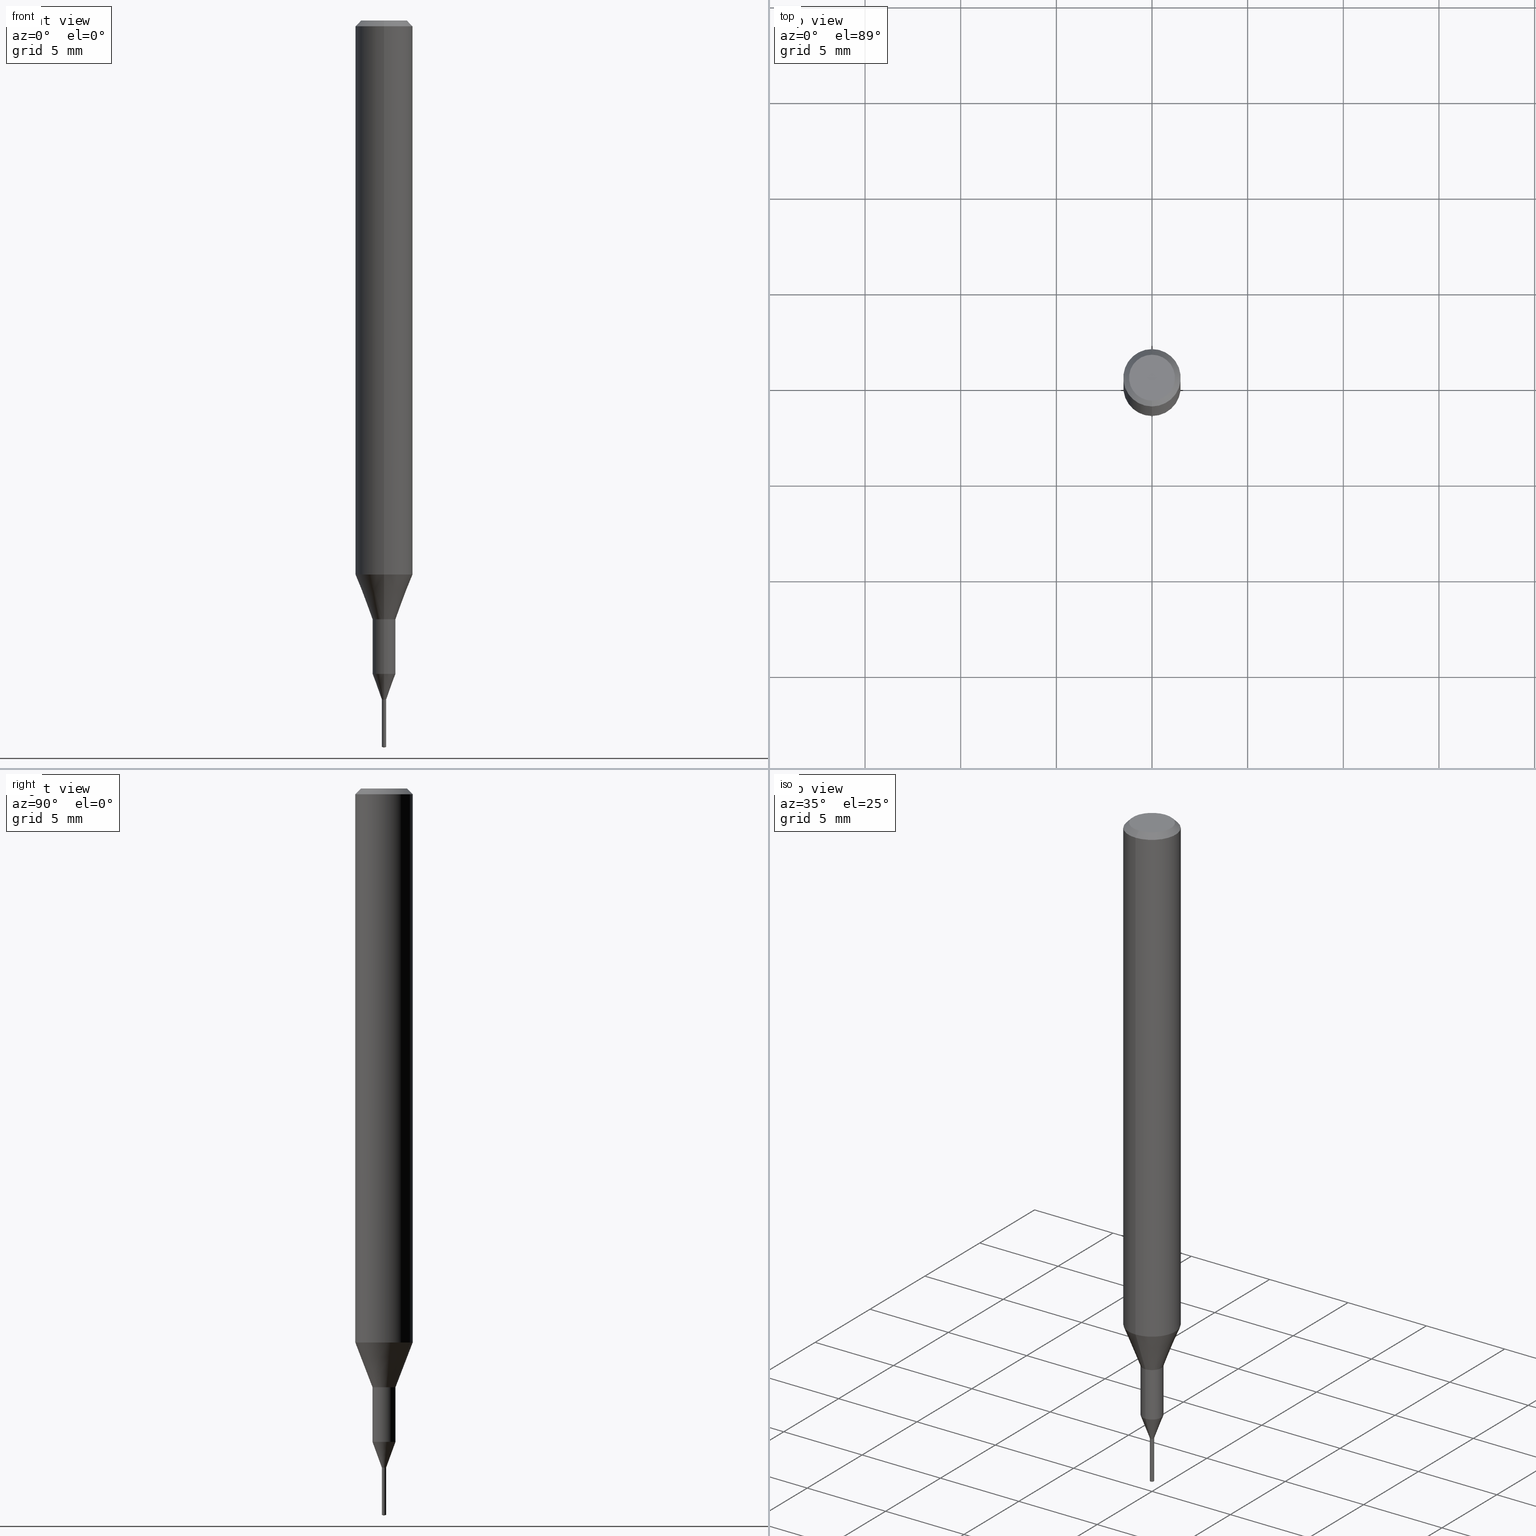
[diagram: canonical four-view strip — front | top / right | iso, engineering-drawing reading convention]
A machine part, canonical four-view strip (front | top / right | iso — engineering-drawing reading convention). The complete STEP part file that produces these views, byte-faithful:
ISO-10303-21;
HEADER;
FILE_DESCRIPTION(('no description'),'unknown implementation level');
FILE_NAME('C-UMD2022-025-Huellk.stp','  ',('CIMSOURCE GmbH'),('CADClick - KiM GmbH - www.kimweb.de'),'unknown preprocess','ACIS','unknown authorization');
FILE_SCHEMA(('automotive_design'));
ENDSEC;
DATA;
#1=MECHANICAL_DESIGN_GEOMETRIC_PRESENTATION_REPRESENTATION(' ',(#14,#15,#16,#17,#18,#19,#20,#21,#22,#23,#24,#25,#26,#27,#28,#29,#30,#31,#32,#33,#34,#35,#36,#37,#38,#39,#40,#41,#42,#43,#44,#45,#46,#47,#48,#49,#50,#51,#52,#53,#54,#55,#56,#57,#58,#59,#60,#61,#62,#63,#64,#65,#66,#67,#68,#69,#70,#71,#72,#73,#74,#75,#76,#77,#78,#79,#80,#81,#82,#83,#84,#85,#86,#87,#88,#89,#90,#91,#92),#10);
#2=PRODUCT_DEFINITION_CONTEXT('',#93,'design');
#3=APPLICATION_PROTOCOL_DEFINITION('INTERNATIONAL STANDARD','automotive_design',1994,#93);
#4=PRODUCT_CATEGORY_RELATIONSHIP('NONE','NONE',#94,#95);
#5=SHAPE_DEFINITION_REPRESENTATION(#96,#97);
#6=PRODUCT_DEFINITION_CONTEXT('',#98,'design');
#7=APPLICATION_PROTOCOL_DEFINITION('INTERNATIONAL STANDARD','automotive_design',1994,#98);
#8=PRODUCT_CATEGORY_RELATIONSHIP('NONE','NONE',#99,#100);
#9=SHAPE_DEFINITION_REPRESENTATION(#101,#102);
#10= (GEOMETRIC_REPRESENTATION_CONTEXT(3)GLOBAL_UNCERTAINTY_ASSIGNED_CONTEXT((#105))GLOBAL_UNIT_ASSIGNED_CONTEXT((#107,#108,#109))REPRESENTATION_CONTEXT('NONE','WORKSPACE'));
#14=STYLED_ITEM('',(#111),#112);
#15=STYLED_ITEM('',(#113),#114);
#16=STYLED_ITEM('',(#115),#116);
#17=STYLED_ITEM('',(#117),#118);
#18=STYLED_ITEM('',(#119),#120);
#19=STYLED_ITEM('',(#121),#122);
#20=STYLED_ITEM('',(#123),#124);
#21=STYLED_ITEM('',(#125),#126);
#22=STYLED_ITEM('',(#127),#128);
#23=STYLED_ITEM('',(#129),#130);
#24=STYLED_ITEM('',(#131),#132);
#25=STYLED_ITEM('',(#133),#134);
#26=STYLED_ITEM('',(#135),#136);
#27=STYLED_ITEM('',(#137),#138);
#28=STYLED_ITEM('',(#139),#140);
#29=STYLED_ITEM('',(#141),#142);
#30=STYLED_ITEM('',(#143),#144);
#31=STYLED_ITEM('',(#145),#146);
#32=STYLED_ITEM('',(#147),#148);
#33=STYLED_ITEM('',(#149),#150);
#34=STYLED_ITEM('',(#151),#152);
#35=STYLED_ITEM('',(#153),#154);
#36=STYLED_ITEM('',(#155),#156);
#37=STYLED_ITEM('',(#157),#158);
#38=STYLED_ITEM('',(#159),#160);
#39=STYLED_ITEM('',(#161),#162);
#40=STYLED_ITEM('',(#163),#164);
#41=STYLED_ITEM('',(#165),#166);
#42=STYLED_ITEM('',(#167),#168);
#43=STYLED_ITEM('',(#169),#170);
#44=STYLED_ITEM('',(#171),#172);
#45=STYLED_ITEM('',(#173),#174);
#46=STYLED_ITEM('',(#175),#176);
#47=STYLED_ITEM('',(#177),#178);
#48=STYLED_ITEM('',(#179),#180);
#49=STYLED_ITEM('',(#181),#182);
#50=STYLED_ITEM('',(#183),#184);
#51=STYLED_ITEM('',(#185),#186);
#52=STYLED_ITEM('',(#187),#188);
#53=STYLED_ITEM('',(#189),#190);
#54=STYLED_ITEM('',(#191),#192);
#55=STYLED_ITEM('',(#193),#194);
#56=STYLED_ITEM('',(#195),#196);
#57=STYLED_ITEM('',(#197),#198);
#58=STYLED_ITEM('',(#199),#200);
#59=STYLED_ITEM('',(#201),#202);
#60=STYLED_ITEM('',(#203),#204);
#61=STYLED_ITEM('',(#205),#206);
#62=STYLED_ITEM('',(#207),#208);
#63=STYLED_ITEM('',(#209),#210);
#64=STYLED_ITEM('',(#211),#212);
#65=STYLED_ITEM('',(#213),#214);
#66=STYLED_ITEM('',(#215),#216);
#67=STYLED_ITEM('',(#217),#218);
#68=STYLED_ITEM('',(#219),#220);
#69=STYLED_ITEM('',(#221),#222);
#70=STYLED_ITEM('',(#223),#224);
#71=STYLED_ITEM('',(#225),#226);
#72=STYLED_ITEM('',(#227),#228);
#73=STYLED_ITEM('',(#229),#230);
#74=STYLED_ITEM('',(#231),#232);
#75=STYLED_ITEM('',(#233),#234);
#76=STYLED_ITEM('',(#235),#236);
#77=STYLED_ITEM('',(#237),#238);
#78=STYLED_ITEM('',(#239),#240);
#79=STYLED_ITEM('',(#241),#242);
#80=STYLED_ITEM('',(#243),#244);
#81=STYLED_ITEM('',(#245),#246);
#82=STYLED_ITEM('',(#247),#248);
#83=STYLED_ITEM('',(#249),#250);
#84=STYLED_ITEM('',(#251),#252);
#85=STYLED_ITEM('',(#253),#254);
#86=STYLED_ITEM('',(#255),#256);
#87=STYLED_ITEM('',(#257),#258);
#88=STYLED_ITEM('',(#259),#260);
#89=STYLED_ITEM('',(#261),#262);
#90=STYLED_ITEM('',(#263),#264);
#91=STYLED_ITEM('',(#265),#266);
#92=STYLED_ITEM('',(#267),#268);
#93=APPLICATION_CONTEXT(' ');
#94=PRODUCT_CATEGORY('part','NONE');
#95=PRODUCT_RELATED_PRODUCT_CATEGORY('detail',' ',(#269));
#96=PRODUCT_DEFINITION_SHAPE('NONE','NONE',#270);
#97=ADVANCED_BREP_SHAPE_REPRESENTATION('1',(#136,#271),#10);
#98=APPLICATION_CONTEXT(' ');
#99=PRODUCT_CATEGORY('part','NONE');
#100=PRODUCT_RELATED_PRODUCT_CATEGORY('detail',' ',(#272));
#101=PRODUCT_DEFINITION_SHAPE('NONE','NONE',#273);
#102=ADVANCED_BREP_SHAPE_REPRESENTATION('2',(#148,#274),#10);
#105=UNCERTAINTY_MEASURE_WITH_UNIT(LENGTH_MEASURE(1.0E-006),#107,'','');
#107= (CONVERSION_BASED_UNIT('MILLIMETRE',#277)LENGTH_UNIT()NAMED_UNIT(#280));
#108= (NAMED_UNIT(#282)PLANE_ANGLE_UNIT()SI_UNIT($,.RADIAN.));
#109= (NAMED_UNIT(#282)SOLID_ANGLE_UNIT()SI_UNIT($,.STERADIAN.));
#111=PRESENTATION_STYLE_ASSIGNMENT((#288));
#112=ADVANCED_FACE('',(#289),#290,.T.);
#113=PRESENTATION_STYLE_ASSIGNMENT((#291));
#114=VERTEX_POINT('',#292);
#115=PRESENTATION_STYLE_ASSIGNMENT((#293));
#116=ADVANCED_FACE('',(#294),#295,.T.);
#117=PRESENTATION_STYLE_ASSIGNMENT((#296));
#118=EDGE_CURVE('',#244,#242,#297,.T.);
#119=PRESENTATION_STYLE_ASSIGNMENT((#298));
#120=EDGE_CURVE('',#164,#216,#299,.T.);
#121=PRESENTATION_STYLE_ASSIGNMENT((#300));
#122=EDGE_CURVE('',#200,#204,#301,.T.);
#123=PRESENTATION_STYLE_ASSIGNMENT((#302));
#124=EDGE_CURVE('',#202,#222,#303,.T.);
#125=PRESENTATION_STYLE_ASSIGNMENT((#304));
#126=EDGE_CURVE('',#236,#114,#305,.T.);
#127=PRESENTATION_STYLE_ASSIGNMENT((#306));
#128=ADVANCED_FACE('',(#307),#308,.T.);
#129=PRESENTATION_STYLE_ASSIGNMENT((#309));
#130=EDGE_CURVE('',#150,#234,#310,.T.);
#131=PRESENTATION_STYLE_ASSIGNMENT((#311));
#132=EDGE_CURVE('',#114,#200,#312,.T.);
#133=PRESENTATION_STYLE_ASSIGNMENT((#313));
#134=EDGE_CURVE('',#204,#236,#314,.T.);
#135=PRESENTATION_STYLE_ASSIGNMENT((#315));
#136=MANIFOLD_SOLID_BREP('1',#316);
#137=PRESENTATION_STYLE_ASSIGNMENT((#317));
#138=EDGE_CURVE('',#250,#204,#318,.T.);
#139=PRESENTATION_STYLE_ASSIGNMENT((#319));
#140=VERTEX_POINT('',#320);
#141=PRESENTATION_STYLE_ASSIGNMENT((#321));
#142=EDGE_CURVE('',#188,#232,#322,.T.);
#143=PRESENTATION_STYLE_ASSIGNMENT((#323));
#144=VERTEX_POINT('',#324);
#145=PRESENTATION_STYLE_ASSIGNMENT((#325));
#146=EDGE_CURVE('',#154,#192,#326,.T.);
#147=PRESENTATION_STYLE_ASSIGNMENT((#327));
#148=MANIFOLD_SOLID_BREP('2',#328);
#149=PRESENTATION_STYLE_ASSIGNMENT((#329));
#150=VERTEX_POINT('',#330);
#151=PRESENTATION_STYLE_ASSIGNMENT((#331));
#152=EDGE_CURVE('',#242,#244,#332,.T.);
#153=PRESENTATION_STYLE_ASSIGNMENT((#333));
#154=VERTEX_POINT('',#334);
#155=PRESENTATION_STYLE_ASSIGNMENT((#335));
#156=ADVANCED_FACE('',(#336),#337,.T.);
#157=PRESENTATION_STYLE_ASSIGNMENT((#338));
#158=ADVANCED_FACE('',(#339),#340,.T.);
#159=PRESENTATION_STYLE_ASSIGNMENT((#341));
#160=EDGE_CURVE('',#216,#164,#342,.T.);
#161=PRESENTATION_STYLE_ASSIGNMENT((#343));
#162=ADVANCED_FACE('',(#344),#345,.T.);
#163=PRESENTATION_STYLE_ASSIGNMENT((#346));
#164=VERTEX_POINT('',#347);
#165=PRESENTATION_STYLE_ASSIGNMENT((#348));
#166=ADVANCED_FACE('',(#349),#350,.T.);
#167=PRESENTATION_STYLE_ASSIGNMENT((#351));
#168=ADVANCED_FACE('',(#352),#353,.T.);
#169=PRESENTATION_STYLE_ASSIGNMENT((#354));
#170=VERTEX_POINT('',#355);
#171=PRESENTATION_STYLE_ASSIGNMENT((#356));
#172=ADVANCED_FACE('',(#357),#358,.T.);
#173=PRESENTATION_STYLE_ASSIGNMENT((#359));
#174=EDGE_CURVE('',#234,#150,#360,.T.);
#175=PRESENTATION_STYLE_ASSIGNMENT((#361));
#176=VERTEX_POINT('',#362);
#177=PRESENTATION_STYLE_ASSIGNMENT((#363));
#178=EDGE_CURVE('',#176,#150,#364,.T.);
#179=PRESENTATION_STYLE_ASSIGNMENT((#365));
#180=ADVANCED_FACE('',(#366),#367,.T.);
#181=PRESENTATION_STYLE_ASSIGNMENT((#368));
#182=EDGE_CURVE('',#200,#250,#369,.T.);
#183=PRESENTATION_STYLE_ASSIGNMENT((#370));
#184=EDGE_CURVE('',#234,#144,#371,.T.);
#185=PRESENTATION_STYLE_ASSIGNMENT((#372));
#186=EDGE_CURVE('',#188,#140,#373,.T.);
#187=PRESENTATION_STYLE_ASSIGNMENT((#374));
#188=VERTEX_POINT('',#375);
#189=PRESENTATION_STYLE_ASSIGNMENT((#376));
#190=EDGE_CURVE('',#176,#144,#377,.T.);
#191=PRESENTATION_STYLE_ASSIGNMENT((#378));
#192=VERTEX_POINT('',#379);
#193=PRESENTATION_STYLE_ASSIGNMENT((#380));
#194=EDGE_CURVE('',#236,#222,#381,.T.);
#195=PRESENTATION_STYLE_ASSIGNMENT((#382));
#196=ADVANCED_FACE('',(#383,#384),#385,.T.);
#197=PRESENTATION_STYLE_ASSIGNMENT((#386));
#198=EDGE_CURVE('',#154,#234,#387,.T.);
#199=PRESENTATION_STYLE_ASSIGNMENT((#388));
#200=VERTEX_POINT('',#389);
#201=PRESENTATION_STYLE_ASSIGNMENT((#390));
#202=VERTEX_POINT('',#391);
#203=PRESENTATION_STYLE_ASSIGNMENT((#392));
#204=VERTEX_POINT('',#393);
#205=PRESENTATION_STYLE_ASSIGNMENT((#394));
#206=ADVANCED_FACE('',(#395),#396,.T.);
#207=PRESENTATION_STYLE_ASSIGNMENT((#397));
#208=EDGE_CURVE('',#170,#140,#398,.T.);
#209=PRESENTATION_STYLE_ASSIGNMENT((#399));
#210=EDGE_CURVE('',#114,#236,#400,.T.);
#211=PRESENTATION_STYLE_ASSIGNMENT((#401));
#212=EDGE_CURVE('',#202,#114,#402,.T.);
#213=PRESENTATION_STYLE_ASSIGNMENT((#403));
#214=EDGE_CURVE('',#144,#176,#404,.T.);
#215=PRESENTATION_STYLE_ASSIGNMENT((#405));
#216=VERTEX_POINT('',#406);
#217=PRESENTATION_STYLE_ASSIGNMENT((#407));
#218=ADVANCED_FACE('',(#408),#409,.T.);
#219=PRESENTATION_STYLE_ASSIGNMENT((#410));
#220=ADVANCED_FACE('',(#411),#412,.T.);
#221=PRESENTATION_STYLE_ASSIGNMENT((#413));
#222=VERTEX_POINT('',#414);
#223=PRESENTATION_STYLE_ASSIGNMENT((#415));
#224=EDGE_CURVE('',#242,#170,#416,.T.);
#225=PRESENTATION_STYLE_ASSIGNMENT((#417));
#226=ADVANCED_FACE('',(#418),#419,.T.);
#227=PRESENTATION_STYLE_ASSIGNMENT((#420));
#228=EDGE_CURVE('',#192,#154,#421,.T.);
#229=PRESENTATION_STYLE_ASSIGNMENT((#422));
#230=EDGE_CURVE('',#222,#202,#423,.T.);
#231=PRESENTATION_STYLE_ASSIGNMENT((#424));
#232=VERTEX_POINT('',#425);
#233=PRESENTATION_STYLE_ASSIGNMENT((#426));
#234=VERTEX_POINT('',#427);
#235=PRESENTATION_STYLE_ASSIGNMENT((#428));
#236=VERTEX_POINT('',#429);
#237=PRESENTATION_STYLE_ASSIGNMENT((#430));
#238=EDGE_CURVE('',#204,#200,#431,.T.);
#239=PRESENTATION_STYLE_ASSIGNMENT((#432));
#240=EDGE_CURVE('',#140,#170,#433,.T.);
#241=PRESENTATION_STYLE_ASSIGNMENT((#434));
#242=VERTEX_POINT('',#435);
#243=PRESENTATION_STYLE_ASSIGNMENT((#436));
#244=VERTEX_POINT('',#437);
#245=PRESENTATION_STYLE_ASSIGNMENT((#438));
#246=EDGE_CURVE('',#164,#154,#439,.T.);
#247=PRESENTATION_STYLE_ASSIGNMENT((#440));
#248=ADVANCED_FACE('',(#441),#442,.T.);
#249=PRESENTATION_STYLE_ASSIGNMENT((#443));
#250=VERTEX_POINT('',#444);
#251=PRESENTATION_STYLE_ASSIGNMENT((#445));
#252=ADVANCED_FACE('',(#446),#447,.T.);
#253=PRESENTATION_STYLE_ASSIGNMENT((#448));
#254=ADVANCED_FACE('',(#449),#450,.T.);
#255=PRESENTATION_STYLE_ASSIGNMENT((#451));
#256=EDGE_CURVE('',#192,#216,#452,.T.);
#257=PRESENTATION_STYLE_ASSIGNMENT((#453));
#258=ADVANCED_FACE('',(#454),#455,.T.);
#259=PRESENTATION_STYLE_ASSIGNMENT((#456));
#260=EDGE_CURVE('',#170,#232,#457,.T.);
#261=PRESENTATION_STYLE_ASSIGNMENT((#458));
#262=EDGE_CURVE('',#232,#188,#459,.T.);
#263=PRESENTATION_STYLE_ASSIGNMENT((#460));
#264=ADVANCED_FACE('',(#461),#462,.T.);
#265=PRESENTATION_STYLE_ASSIGNMENT((#463));
#266=EDGE_CURVE('',#150,#192,#464,.T.);
#267=PRESENTATION_STYLE_ASSIGNMENT((#465));
#268=EDGE_CURVE('',#140,#244,#466,.T.);
#269=PRODUCT('1','1','PART-1-DESC',(#467));
#270=PRODUCT_DEFINITION('NONE','NONE',#468,#2);
#271=AXIS2_PLACEMENT_3D('',#469,#470,#471);
#272=PRODUCT('2','2','PART-2-DESC',(#472));
#273=PRODUCT_DEFINITION('NONE','NONE',#473,#6);
#274=AXIS2_PLACEMENT_3D('',#474,#475,#476);
#277=LENGTH_MEASURE_WITH_UNIT(LENGTH_MEASURE(1.0),#477);
#280=DIMENSIONAL_EXPONENTS(1.0,0.0,0.0,0.0,0.0,0.0,0.0);
#282=DIMENSIONAL_EXPONENTS(0.0,0.0,0.0,0.0,0.0,0.0,0.0);
#288=SURFACE_STYLE_USAGE(.BOTH.,#478);
#289=FACE_OUTER_BOUND('',#479,.T.);
#290=CONICAL_SURFACE('',#480,0.110518202080238,1.47460663730712);
#291=POINT_STYLE(' ',#481,POSITIVE_LENGTH_MEASURE(1.0E-006),#482);
#292=CARTESIAN_POINT('',(-0.11,0.0,-35.5));
#293=SURFACE_STYLE_USAGE(.BOTH.,#483);
#294=FACE_OUTER_BOUND('',#484,.T.);
#295=CONICAL_SURFACE('',#485,1.35,0.785398163397447);
#296=CURVE_STYLE('',#486,POSITIVE_LENGTH_MEASURE(1.0E-006),#487);
#297=CIRCLE('',#488,0.110036400445765);
#298=CURVE_STYLE('',#489,POSITIVE_LENGTH_MEASURE(1.0E-006),#490);
#299=CIRCLE('',#491,1.2);
#300=CURVE_STYLE('',#492,POSITIVE_LENGTH_MEASURE(1.0E-006),#493);
#301=CIRCLE('',#494,0.11);
#302=CURVE_STYLE('',#495,POSITIVE_LENGTH_MEASURE(1.0E-006),#496);
#303=CIRCLE('',#497,0.111036404160475);
#304=CURVE_STYLE('',#498,POSITIVE_LENGTH_MEASURE(1.0E-006),#499);
#305=CIRCLE('',#500,0.11);
#306=SURFACE_STYLE_USAGE(.BOTH.,#501);
#307=FACE_OUTER_BOUND('',#502,.T.);
#308=PLANE('',#503);
#309=CURVE_STYLE('',#504,POSITIVE_LENGTH_MEASURE(1.0E-006),#505);
#310=CIRCLE('',#506,1.5);
#311=CURVE_STYLE('',#507,POSITIVE_LENGTH_MEASURE(1.0E-006),#508);
#312=LINE('',#509,#510);
#313=CURVE_STYLE('',#511,POSITIVE_LENGTH_MEASURE(1.0E-006),#512);
#314=LINE('',#513,#514);
#315=SURFACE_STYLE_USAGE(.BOTH.,#515);
#316=CLOSED_SHELL('',(#218,#158,#168,#252,#116,#162,#254,#226,#156,#196,#220,#172,#166));
#317=CURVE_STYLE('',#516,POSITIVE_LENGTH_MEASURE(1.0E-006),#517);
#318=LINE('',#518,#519);
#319=POINT_STYLE(' ',#520,POSITIVE_LENGTH_MEASURE(1.0E-006),#521);
#320=CARTESIAN_POINT('',(0.0,0.59995,-34.154));
#321=CURVE_STYLE('',#522,POSITIVE_LENGTH_MEASURE(1.0E-006),#523);
#322=CIRCLE('',#524,0.59995);
#323=POINT_STYLE(' ',#525,POSITIVE_LENGTH_MEASURE(1.0E-006),#526);
#324=CARTESIAN_POINT('',(0.0,0.6,-31.3));
#325=CURVE_STYLE('',#527,POSITIVE_LENGTH_MEASURE(1.0E-006),#528);
#326=CIRCLE('',#529,1.5);
#327=SURFACE_STYLE_USAGE(.BOTH.,#530);
#328=CLOSED_SHELL('',(#258,#248,#112,#128,#264,#206,#180));
#329=POINT_STYLE(' ',#531,POSITIVE_LENGTH_MEASURE(1.0E-006),#532);
#330=CARTESIAN_POINT('',(1.83690953073357E-016,-1.5,-28.955));
#331=CURVE_STYLE('',#533,POSITIVE_LENGTH_MEASURE(1.0E-006),#534);
#332=CIRCLE('',#535,0.110036400445765);
#333=POINT_STYLE(' ',#536,POSITIVE_LENGTH_MEASURE(1.0E-006),#537);
#334=CARTESIAN_POINT('',(0.0,1.5,-0.300000000000001));
#335=SURFACE_STYLE_USAGE(.BOTH.,#538);
#336=FACE_OUTER_BOUND('',#539,.T.);
#337=CONICAL_SURFACE('',#540,1.05,0.366459241971866);
#338=SURFACE_STYLE_USAGE(.BOTH.,#541);
#339=FACE_OUTER_BOUND('',#542,.T.);
#340=CYLINDRICAL_SURFACE('',#543,0.59995);
#341=CURVE_STYLE('',#544,POSITIVE_LENGTH_MEASURE(1.0E-006),#545);
#342=CIRCLE('',#546,1.2);
#343=SURFACE_STYLE_USAGE(.BOTH.,#547);
#344=FACE_OUTER_BOUND('',#548,.T.);
#345=PLANE('',#549);
#346=POINT_STYLE(' ',#550,POSITIVE_LENGTH_MEASURE(1.0E-006),#551);
#347=CARTESIAN_POINT('',(0.0,1.2,0.0));
#348=SURFACE_STYLE_USAGE(.BOTH.,#552);
#349=FACE_OUTER_BOUND('',#553,.T.);
#350=PLANE('',#554);
#351=SURFACE_STYLE_USAGE(.BOTH.,#555);
#352=FACE_OUTER_BOUND('',#556,.T.);
#353=CONICAL_SURFACE('',#557,1.05,0.366459241971866);
#354=POINT_STYLE(' ',#558,POSITIVE_LENGTH_MEASURE(1.0E-006),#559);
#355=CARTESIAN_POINT('',(7.34702581975735E-017,-0.59995,-34.154));
#356=SURFACE_STYLE_USAGE(.BOTH.,#560);
#357=FACE_OUTER_BOUND('',#561,.T.);
#358=CONICAL_SURFACE('',#562,0.354993200222883,0.349096070076889);
#359=CURVE_STYLE('',#563,POSITIVE_LENGTH_MEASURE(1.0E-006),#564);
#360=CIRCLE('',#565,1.5);
#361=POINT_STYLE(' ',#566,POSITIVE_LENGTH_MEASURE(1.0E-006),#567);
#362=CARTESIAN_POINT('',(7.34763812293426E-017,-0.6,-31.3));
#363=CURVE_STYLE('',#568,POSITIVE_LENGTH_MEASURE(1.0E-006),#569);
#364=LINE('',#570,#571);
#365=SURFACE_STYLE_USAGE(.BOTH.,#572);
#366=FACE_OUTER_BOUND('',#573,.T.);
#367=CONICAL_SURFACE('',#574,0.055,1.30899694889775);
#368=CURVE_STYLE('',#575,POSITIVE_LENGTH_MEASURE(1.0E-006),#576);
#369=LINE('',#577,#578);
#370=CURVE_STYLE('',#579,POSITIVE_LENGTH_MEASURE(1.0E-006),#580);
#371=LINE('',#581,#582);
#372=CURVE_STYLE('',#583,POSITIVE_LENGTH_MEASURE(1.0E-006),#584);
#373=LINE('',#585,#586);
#374=POINT_STYLE(' ',#587,POSITIVE_LENGTH_MEASURE(1.0E-006),#588);
#375=CARTESIAN_POINT('',(0.0,0.59995,-31.3));
#376=CURVE_STYLE('',#589,POSITIVE_LENGTH_MEASURE(1.0E-006),#590);
#377=CIRCLE('',#591,0.6);
#378=POINT_STYLE(' ',#592,POSITIVE_LENGTH_MEASURE(1.0E-006),#593);
#379=CARTESIAN_POINT('',(1.83690953073357E-016,-1.5,-0.300000000000001));
#380=CURVE_STYLE('',#594,POSITIVE_LENGTH_MEASURE(1.0E-006),#595);
#381=LINE('',#596,#597);
#382=SURFACE_STYLE_USAGE(.BOTH.,#598);
#383=FACE_BOUND('',#599,.T.);
#384=FACE_OUTER_BOUND('',#600,.T.);
#385=PLANE('',#601);
#386=CURVE_STYLE('',#602,POSITIVE_LENGTH_MEASURE(1.0E-006),#603);
#387=LINE('',#604,#605);
#388=POINT_STYLE(' ',#606,POSITIVE_LENGTH_MEASURE(1.0E-006),#607);
#389=CARTESIAN_POINT('',(-0.11,0.0,-37.97052559));
#390=POINT_STYLE(' ',#608,POSITIVE_LENGTH_MEASURE(1.0E-006),#609);
#391=CARTESIAN_POINT('',(-0.111036404160475,0.0,-35.4999));
#392=POINT_STYLE(' ',#610,POSITIVE_LENGTH_MEASURE(1.0E-006),#611);
#393=CARTESIAN_POINT('',(0.11,1.34706698920462E-017,-37.97052559));
#394=SURFACE_STYLE_USAGE(.BOTH.,#612);
#395=FACE_OUTER_BOUND('',#613,.T.);
#396=CYLINDRICAL_SURFACE('',#614,0.11);
#397=CURVE_STYLE('',#615,POSITIVE_LENGTH_MEASURE(1.0E-006),#616);
#398=CIRCLE('',#617,0.59995);
#399=CURVE_STYLE('',#618,POSITIVE_LENGTH_MEASURE(1.0E-006),#619);
#400=CIRCLE('',#620,0.11);
#401=CURVE_STYLE('',#621,POSITIVE_LENGTH_MEASURE(1.0E-006),#622);
#402=LINE('',#623,#624);
#403=CURVE_STYLE('',#625,POSITIVE_LENGTH_MEASURE(1.0E-006),#626);
#404=CIRCLE('',#627,0.6);
#405=POINT_STYLE(' ',#628,POSITIVE_LENGTH_MEASURE(1.0E-006),#629);
#406=CARTESIAN_POINT('',(1.46952762458685E-016,-1.2,0.0));
#407=SURFACE_STYLE_USAGE(.BOTH.,#630);
#408=FACE_OUTER_BOUND('',#631,.T.);
#409=CONICAL_SURFACE('',#632,0.354993200222883,0.349096070076889);
#410=SURFACE_STYLE_USAGE(.BOTH.,#633);
#411=FACE_OUTER_BOUND('',#634,.T.);
#412=CYLINDRICAL_SURFACE('',#635,0.59995);
#413=POINT_STYLE(' ',#636,POSITIVE_LENGTH_MEASURE(1.0E-006),#637);
#414=CARTESIAN_POINT('',(0.111036404160475,1.35975886040508E-017,-35.4999));
#415=CURVE_STYLE('',#638,POSITIVE_LENGTH_MEASURE(1.0E-006),#639);
#416=LINE('',#640,#641);
#417=SURFACE_STYLE_USAGE(.BOTH.,#642);
#418=FACE_OUTER_BOUND('',#643,.T.);
#419=CYLINDRICAL_SURFACE('',#644,1.5);
#420=CURVE_STYLE('',#645,POSITIVE_LENGTH_MEASURE(1.0E-006),#646);
#421=CIRCLE('',#647,1.5);
#422=CURVE_STYLE('',#648,POSITIVE_LENGTH_MEASURE(1.0E-006),#649);
#423=CIRCLE('',#650,0.111036404160475);
#424=POINT_STYLE(' ',#651,POSITIVE_LENGTH_MEASURE(1.0E-006),#652);
#425=CARTESIAN_POINT('',(7.34702581975735E-017,-0.59995,-31.3));
#426=POINT_STYLE(' ',#653,POSITIVE_LENGTH_MEASURE(1.0E-006),#654);
#427=CARTESIAN_POINT('',(0.0,1.5,-28.955));
#428=POINT_STYLE(' ',#655,POSITIVE_LENGTH_MEASURE(1.0E-006),#656);
#429=CARTESIAN_POINT('',(0.11,1.34706698920462E-017,-35.5));
#430=CURVE_STYLE('',#657,POSITIVE_LENGTH_MEASURE(1.0E-006),#658);
#431=CIRCLE('',#659,0.11);
#432=CURVE_STYLE('',#660,POSITIVE_LENGTH_MEASURE(1.0E-006),#661);
#433=CIRCLE('',#662,0.59995);
#434=POINT_STYLE(' ',#663,POSITIVE_LENGTH_MEASURE(1.0E-006),#664);
#435=CARTESIAN_POINT('',(1.34751275137627E-017,-0.110036400445765,-35.4999));
#436=POINT_STYLE(' ',#665,POSITIVE_LENGTH_MEASURE(1.0E-006),#666);
#437=CARTESIAN_POINT('',(0.0,0.110036400445765,-35.4999));
#438=CURVE_STYLE('',#667,POSITIVE_LENGTH_MEASURE(1.0E-006),#668);
#439=LINE('',#669,#670);
#440=SURFACE_STYLE_USAGE(.BOTH.,#671);
#441=FACE_OUTER_BOUND('',#672,.T.);
#442=CYLINDRICAL_SURFACE('',#673,0.11);
#443=POINT_STYLE(' ',#674,POSITIVE_LENGTH_MEASURE(1.0E-006),#675);
#444=CARTESIAN_POINT('',(0.0,0.0,-38.0));
#445=SURFACE_STYLE_USAGE(.BOTH.,#676);
#446=FACE_OUTER_BOUND('',#677,.T.);
#447=CYLINDRICAL_SURFACE('',#678,1.5);
#448=SURFACE_STYLE_USAGE(.BOTH.,#679);
#449=FACE_OUTER_BOUND('',#680,.T.);
#450=CONICAL_SURFACE('',#681,1.35,0.785398163397447);
#451=CURVE_STYLE('',#682,POSITIVE_LENGTH_MEASURE(1.0E-006),#683);
#452=LINE('',#684,#685);
#453=SURFACE_STYLE_USAGE(.BOTH.,#686);
#454=FACE_OUTER_BOUND('',#687,.T.);
#455=CONICAL_SURFACE('',#688,0.055,1.30899694889775);
#456=CURVE_STYLE('',#689,POSITIVE_LENGTH_MEASURE(1.0E-006),#690);
#457=LINE('',#691,#692);
#458=CURVE_STYLE('',#693,POSITIVE_LENGTH_MEASURE(1.0E-006),#694);
#459=CIRCLE('',#695,0.59995);
#460=SURFACE_STYLE_USAGE(.BOTH.,#696);
#461=FACE_OUTER_BOUND('',#697,.T.);
#462=CONICAL_SURFACE('',#698,0.110518202080238,1.47460663730712);
#463=CURVE_STYLE('',#699,POSITIVE_LENGTH_MEASURE(1.0E-006),#700);
#464=LINE('',#701,#702);
#465=CURVE_STYLE('',#703,POSITIVE_LENGTH_MEASURE(1.0E-006),#704);
#466=LINE('',#705,#706);
#467=PRODUCT_CONTEXT('',#93,'mechanical');
#468=PRODUCT_DEFINITION_FORMATION_WITH_SPECIFIED_SOURCE(' ','NONE',#269,.NOT_KNOWN.);
#469=CARTESIAN_POINT('',(0.0,0.0,0.0));
#470=DIRECTION('',(0.0,0.0,1.0));
#471=DIRECTION('',(1.0,0.0,0.0));
#472=PRODUCT_CONTEXT('',#98,'mechanical');
#473=PRODUCT_DEFINITION_FORMATION_WITH_SPECIFIED_SOURCE(' ','NONE',#272,.NOT_KNOWN.);
#474=CARTESIAN_POINT('',(0.0,0.0,0.0));
#475=DIRECTION('',(0.0,0.0,1.0));
#476=DIRECTION('',(1.0,0.0,0.0));
#477= (NAMED_UNIT(#280)LENGTH_UNIT()SI_UNIT(.MILLI.,.METRE.));
#478=SURFACE_SIDE_STYLE('',(#708));
#479=EDGE_LOOP('',(#709,#710,#711,#712));
#480=AXIS2_PLACEMENT_3D('',#713,#714,#715);
#481=PRE_DEFINED_MARKER('');
#482=COLOUR_RGB('',0.800000011920929,0.800000011920929,0.800000011920929);
#483=SURFACE_SIDE_STYLE('',(#716));
#484=EDGE_LOOP('',(#717,#718,#719,#720));
#485=AXIS2_PLACEMENT_3D('',#721,#722,#723);
#486=DRAUGHTING_PRE_DEFINED_CURVE_FONT('continuous');
#487=COLOUR_RGB('',0.498039215803146,0.498039215803146,0.498039215803146);
#488=AXIS2_PLACEMENT_3D('',#724,#725,#726);
#489=DRAUGHTING_PRE_DEFINED_CURVE_FONT('continuous');
#490=COLOUR_RGB('',0.498039215803146,0.498039215803146,0.498039215803146);
#491=AXIS2_PLACEMENT_3D('',#727,#728,#729);
#492=DRAUGHTING_PRE_DEFINED_CURVE_FONT('continuous');
#493=COLOUR_RGB('',0.800000011920929,0.800000011920929,0.800000011920929);
#494=AXIS2_PLACEMENT_3D('',#730,#731,#732);
#495=DRAUGHTING_PRE_DEFINED_CURVE_FONT('continuous');
#496=COLOUR_RGB('',0.800000011920929,0.800000011920929,0.800000011920929);
#497=AXIS2_PLACEMENT_3D('',#733,#734,#735);
#498=DRAUGHTING_PRE_DEFINED_CURVE_FONT('continuous');
#499=COLOUR_RGB('',0.800000011920929,0.800000011920929,0.800000011920929);
#500=AXIS2_PLACEMENT_3D('',#736,#737,#738);
#501=SURFACE_SIDE_STYLE('',(#739));
#502=EDGE_LOOP('',(#740,#741));
#503=AXIS2_PLACEMENT_3D('',#742,#743,#744);
#504=DRAUGHTING_PRE_DEFINED_CURVE_FONT('continuous');
#505=COLOUR_RGB('',0.498039215803146,0.498039215803146,0.498039215803146);
#506=AXIS2_PLACEMENT_3D('',#745,#746,#747);
#507=DRAUGHTING_PRE_DEFINED_CURVE_FONT('continuous');
#508=COLOUR_RGB('',0.800000011920929,0.800000011920929,0.800000011920929);
#509=CARTESIAN_POINT('',(-0.11,-1.34706698920462E-017,-36.735262795));
#510=VECTOR('',#748,1.0);
#511=DRAUGHTING_PRE_DEFINED_CURVE_FONT('continuous');
#512=COLOUR_RGB('',0.800000011920929,0.800000011920929,0.800000011920929);
#513=CARTESIAN_POINT('',(0.11,1.34706698920462E-017,-36.735262795));
#514=VECTOR('',#749,1.0);
#515=SURFACE_SIDE_STYLE('',(#750));
#516=DRAUGHTING_PRE_DEFINED_CURVE_FONT('continuous');
#517=COLOUR_RGB('',0.800000011920929,0.800000011920929,0.800000011920929);
#518=CARTESIAN_POINT('',(0.055,6.73533494602308E-018,-37.985262795));
#519=VECTOR('',#751,1.0);
#520=PRE_DEFINED_MARKER('');
#521=COLOUR_RGB('',0.498039215803146,0.498039215803146,0.498039215803146);
#522=DRAUGHTING_PRE_DEFINED_CURVE_FONT('continuous');
#523=COLOUR_RGB('',0.498039215803146,0.498039215803146,0.498039215803146);
#524=AXIS2_PLACEMENT_3D('',#752,#753,#754);
#525=PRE_DEFINED_MARKER('');
#526=COLOUR_RGB('',0.498039215803146,0.498039215803146,0.498039215803146);
#527=DRAUGHTING_PRE_DEFINED_CURVE_FONT('continuous');
#528=COLOUR_RGB('',0.498039215803146,0.498039215803146,0.498039215803146);
#529=AXIS2_PLACEMENT_3D('',#755,#756,#757);
#530=SURFACE_SIDE_STYLE('',(#758));
#531=PRE_DEFINED_MARKER('');
#532=COLOUR_RGB('',0.498039215803146,0.498039215803146,0.498039215803146);
#533=DRAUGHTING_PRE_DEFINED_CURVE_FONT('continuous');
#534=COLOUR_RGB('',0.498039215803146,0.498039215803146,0.498039215803146);
#535=AXIS2_PLACEMENT_3D('',#759,#760,#761);
#536=PRE_DEFINED_MARKER('');
#537=COLOUR_RGB('',0.498039215803146,0.498039215803146,0.498039215803146);
#538=SURFACE_SIDE_STYLE('',(#762));
#539=EDGE_LOOP('',(#763,#764,#765,#766));
#540=AXIS2_PLACEMENT_3D('',#767,#768,#769);
#541=SURFACE_SIDE_STYLE('',(#770));
#542=EDGE_LOOP('',(#771,#772,#773,#774));
#543=AXIS2_PLACEMENT_3D('',#775,#776,#777);
#544=DRAUGHTING_PRE_DEFINED_CURVE_FONT('continuous');
#545=COLOUR_RGB('',0.498039215803146,0.498039215803146,0.498039215803146);
#546=AXIS2_PLACEMENT_3D('',#778,#779,#780);
#547=SURFACE_SIDE_STYLE('',(#781));
#548=EDGE_LOOP('',(#782,#783));
#549=AXIS2_PLACEMENT_3D('',#784,#785,#786);
#550=PRE_DEFINED_MARKER('');
#551=COLOUR_RGB('',0.498039215803146,0.498039215803146,0.498039215803146);
#552=SURFACE_SIDE_STYLE('',(#787));
#553=EDGE_LOOP('',(#788,#789));
#554=AXIS2_PLACEMENT_3D('',#790,#791,#792);
#555=SURFACE_SIDE_STYLE('',(#793));
#556=EDGE_LOOP('',(#794,#795,#796,#797));
#557=AXIS2_PLACEMENT_3D('',#798,#799,#800);
#558=PRE_DEFINED_MARKER('');
#559=COLOUR_RGB('',0.498039215803146,0.498039215803146,0.498039215803146);
#560=SURFACE_SIDE_STYLE('',(#801));
#561=EDGE_LOOP('',(#802,#803,#804,#805));
#562=AXIS2_PLACEMENT_3D('',#806,#807,#808);
#563=DRAUGHTING_PRE_DEFINED_CURVE_FONT('continuous');
#564=COLOUR_RGB('',0.498039215803146,0.498039215803146,0.498039215803146);
#565=AXIS2_PLACEMENT_3D('',#809,#810,#811);
#566=PRE_DEFINED_MARKER('');
#567=COLOUR_RGB('',0.498039215803146,0.498039215803146,0.498039215803146);
#568=DRAUGHTING_PRE_DEFINED_CURVE_FONT('continuous');
#569=COLOUR_RGB('',0.498039215803146,0.498039215803146,0.498039215803146);
#570=CARTESIAN_POINT('',(1.2858366715135E-016,-1.05,-30.1275));
#571=VECTOR('',#812,1.0);
#572=SURFACE_SIDE_STYLE('',(#813));
#573=EDGE_LOOP('',(#814,#815,#816));
#574=AXIS2_PLACEMENT_3D('',#817,#818,#819);
#575=DRAUGHTING_PRE_DEFINED_CURVE_FONT('continuous');
#576=COLOUR_RGB('',0.800000011920929,0.800000011920929,0.800000011920929);
#577=CARTESIAN_POINT('',(-0.055,-6.73533494602308E-018,-37.985262795));
#578=VECTOR('',#820,1.0);
#579=DRAUGHTING_PRE_DEFINED_CURVE_FONT('continuous');
#580=COLOUR_RGB('',0.498039215803146,0.498039215803146,0.498039215803146);
#581=CARTESIAN_POINT('',(-1.2858366715135E-016,1.05,-30.1275));
#582=VECTOR('',#821,1.0);
#583=DRAUGHTING_PRE_DEFINED_CURVE_FONT('continuous');
#584=COLOUR_RGB('',0.498039215803146,0.498039215803146,0.498039215803146);
#585=CARTESIAN_POINT('',(-7.34702581975735E-017,0.59995,-32.727));
#586=VECTOR('',#822,1.0);
#587=PRE_DEFINED_MARKER('');
#588=COLOUR_RGB('',0.498039215803146,0.498039215803146,0.498039215803146);
#589=DRAUGHTING_PRE_DEFINED_CURVE_FONT('continuous');
#590=COLOUR_RGB('',0.498039215803146,0.498039215803146,0.498039215803146);
#591=AXIS2_PLACEMENT_3D('',#823,#824,#825);
#592=PRE_DEFINED_MARKER('');
#593=COLOUR_RGB('',0.498039215803146,0.498039215803146,0.498039215803146);
#594=DRAUGHTING_PRE_DEFINED_CURVE_FONT('continuous');
#595=COLOUR_RGB('',0.800000011920929,0.800000011920929,0.800000011920929);
#596=CARTESIAN_POINT('',(0.110518202080238,1.35341292480485E-017,-35.49995));
#597=VECTOR('',#826,1.0);
#598=SURFACE_SIDE_STYLE('',(#827));
#599=EDGE_LOOP('',(#828,#829));
#600=EDGE_LOOP('',(#830,#831));
#601=AXIS2_PLACEMENT_3D('',#832,#833,#834);
#602=DRAUGHTING_PRE_DEFINED_CURVE_FONT('continuous');
#603=COLOUR_RGB('',0.498039215803146,0.498039215803146,0.498039215803146);
#604=CARTESIAN_POINT('',(-1.83690953073357E-016,1.5,-14.6275));
#605=VECTOR('',#835,1.0);
#606=PRE_DEFINED_MARKER('');
#607=COLOUR_RGB('',0.800000011920929,0.800000011920929,0.800000011920929);
#608=PRE_DEFINED_MARKER('');
#609=COLOUR_RGB('',0.800000011920929,0.800000011920929,0.800000011920929);
#610=PRE_DEFINED_MARKER('');
#611=COLOUR_RGB('',0.800000011920929,0.800000011920929,0.800000011920929);
#612=SURFACE_SIDE_STYLE('',(#836));
#613=EDGE_LOOP('',(#837,#838,#839,#840));
#614=AXIS2_PLACEMENT_3D('',#841,#842,#843);
#615=DRAUGHTING_PRE_DEFINED_CURVE_FONT('continuous');
#616=COLOUR_RGB('',0.498039215803146,0.498039215803146,0.498039215803146);
#617=AXIS2_PLACEMENT_3D('',#844,#845,#846);
#618=DRAUGHTING_PRE_DEFINED_CURVE_FONT('continuous');
#619=COLOUR_RGB('',0.800000011920929,0.800000011920929,0.800000011920929);
#620=AXIS2_PLACEMENT_3D('',#847,#848,#849);
#621=DRAUGHTING_PRE_DEFINED_CURVE_FONT('continuous');
#622=COLOUR_RGB('',0.800000011920929,0.800000011920929,0.800000011920929);
#623=CARTESIAN_POINT('',(-0.110518202080238,-1.35341292480485E-017,-35.49995));
#624=VECTOR('',#850,1.0);
#625=DRAUGHTING_PRE_DEFINED_CURVE_FONT('continuous');
#626=COLOUR_RGB('',0.498039215803146,0.498039215803146,0.498039215803146);
#627=AXIS2_PLACEMENT_3D('',#851,#852,#853);
#628=PRE_DEFINED_MARKER('');
#629=COLOUR_RGB('',0.498039215803146,0.498039215803146,0.498039215803146);
#630=SURFACE_SIDE_STYLE('',(#854));
#631=EDGE_LOOP('',(#855,#856,#857,#858));
#632=AXIS2_PLACEMENT_3D('',#859,#860,#861);
#633=SURFACE_SIDE_STYLE('',(#862));
#634=EDGE_LOOP('',(#863,#864,#865,#866));
#635=AXIS2_PLACEMENT_3D('',#867,#868,#869);
#636=PRE_DEFINED_MARKER('');
#637=COLOUR_RGB('',0.800000011920929,0.800000011920929,0.800000011920929);
#638=DRAUGHTING_PRE_DEFINED_CURVE_FONT('continuous');
#639=COLOUR_RGB('',0.498039215803146,0.498039215803146,0.498039215803146);
#640=CARTESIAN_POINT('',(4.34726928556681E-017,-0.354993200222883,-34.82695));
#641=VECTOR('',#870,1.0);
#642=SURFACE_SIDE_STYLE('',(#871));
#643=EDGE_LOOP('',(#872,#873,#874,#875));
#644=AXIS2_PLACEMENT_3D('',#876,#877,#878);
#645=DRAUGHTING_PRE_DEFINED_CURVE_FONT('continuous');
#646=COLOUR_RGB('',0.498039215803146,0.498039215803146,0.498039215803146);
#647=AXIS2_PLACEMENT_3D('',#879,#880,#881);
#648=DRAUGHTING_PRE_DEFINED_CURVE_FONT('continuous');
#649=COLOUR_RGB('',0.800000011920929,0.800000011920929,0.800000011920929);
#650=AXIS2_PLACEMENT_3D('',#882,#883,#884);
#651=PRE_DEFINED_MARKER('');
#652=COLOUR_RGB('',0.498039215803146,0.498039215803146,0.498039215803146);
#653=PRE_DEFINED_MARKER('');
#654=COLOUR_RGB('',0.498039215803146,0.498039215803146,0.498039215803146);
#655=PRE_DEFINED_MARKER('');
#656=COLOUR_RGB('',0.800000011920929,0.800000011920929,0.800000011920929);
#657=DRAUGHTING_PRE_DEFINED_CURVE_FONT('continuous');
#658=COLOUR_RGB('',0.800000011920929,0.800000011920929,0.800000011920929);
#659=AXIS2_PLACEMENT_3D('',#885,#886,#887);
#660=DRAUGHTING_PRE_DEFINED_CURVE_FONT('continuous');
#661=COLOUR_RGB('',0.498039215803146,0.498039215803146,0.498039215803146);
#662=AXIS2_PLACEMENT_3D('',#888,#889,#890);
#663=PRE_DEFINED_MARKER('');
#664=COLOUR_RGB('',0.498039215803146,0.498039215803146,0.498039215803146);
#665=PRE_DEFINED_MARKER('');
#666=COLOUR_RGB('',0.498039215803146,0.498039215803146,0.498039215803146);
#667=DRAUGHTING_PRE_DEFINED_CURVE_FONT('continuous');
#668=COLOUR_RGB('',0.498039215803146,0.498039215803146,0.498039215803146);
#669=CARTESIAN_POINT('',(-1.65321857766021E-016,1.35,-0.149999999999999));
#670=VECTOR('',#891,1.0);
#671=SURFACE_SIDE_STYLE('',(#892));
#672=EDGE_LOOP('',(#893,#894,#895,#896));
#673=AXIS2_PLACEMENT_3D('',#897,#898,#899);
#674=PRE_DEFINED_MARKER('');
#675=COLOUR_RGB('',0.800000011920929,0.800000011920929,0.800000011920929);
#676=SURFACE_SIDE_STYLE('',(#900));
#677=EDGE_LOOP('',(#901,#902,#903,#904));
#678=AXIS2_PLACEMENT_3D('',#905,#906,#907);
#679=SURFACE_SIDE_STYLE('',(#908));
#680=EDGE_LOOP('',(#909,#910,#911,#912));
#681=AXIS2_PLACEMENT_3D('',#913,#914,#915);
#682=DRAUGHTING_PRE_DEFINED_CURVE_FONT('continuous');
#683=COLOUR_RGB('',0.498039215803146,0.498039215803146,0.498039215803146);
#684=CARTESIAN_POINT('',(1.65321857766021E-016,-1.35,-0.149999999999999));
#685=VECTOR('',#916,1.0);
#686=SURFACE_SIDE_STYLE('',(#917));
#687=EDGE_LOOP('',(#918,#919,#920));
#688=AXIS2_PLACEMENT_3D('',#921,#922,#923);
#689=DRAUGHTING_PRE_DEFINED_CURVE_FONT('continuous');
#690=COLOUR_RGB('',0.498039215803146,0.498039215803146,0.498039215803146);
#691=CARTESIAN_POINT('',(7.34702581975735E-017,-0.59995,-32.727));
#692=VECTOR('',#924,1.0);
#693=DRAUGHTING_PRE_DEFINED_CURVE_FONT('continuous');
#694=COLOUR_RGB('',0.498039215803146,0.498039215803146,0.498039215803146);
#695=AXIS2_PLACEMENT_3D('',#925,#926,#927);
#696=SURFACE_SIDE_STYLE('',(#928));
#697=EDGE_LOOP('',(#929,#930,#931,#932));
#698=AXIS2_PLACEMENT_3D('',#933,#934,#935);
#699=DRAUGHTING_PRE_DEFINED_CURVE_FONT('continuous');
#700=COLOUR_RGB('',0.498039215803146,0.498039215803146,0.498039215803146);
#701=CARTESIAN_POINT('',(1.83690953073357E-016,-1.5,-14.6275));
#702=VECTOR('',#936,1.0);
#703=DRAUGHTING_PRE_DEFINED_CURVE_FONT('continuous');
#704=COLOUR_RGB('',0.498039215803146,0.498039215803146,0.498039215803146);
#705=CARTESIAN_POINT('',(-4.34726928556681E-017,0.354993200222883,-34.82695));
#706=VECTOR('',#937,1.0);
#708=SURFACE_STYLE_FILL_AREA(#938);
#709=ORIENTED_EDGE('',*,*,#212,.F.);
#710=ORIENTED_EDGE('',*,*,#124,.T.);
#711=ORIENTED_EDGE('',*,*,#194,.F.);
#712=ORIENTED_EDGE('',*,*,#210,.F.);
#713=CARTESIAN_POINT('',(0.0,0.0,-35.49995));
#714=DIRECTION('',(-0.0,-0.0,1.0));
#715=DIRECTION('',(-1.0,0.0,0.0));
#716=SURFACE_STYLE_FILL_AREA(#939);
#717=ORIENTED_EDGE('',*,*,#246,.F.);
#718=ORIENTED_EDGE('',*,*,#120,.T.);
#719=ORIENTED_EDGE('',*,*,#256,.F.);
#720=ORIENTED_EDGE('',*,*,#146,.F.);
#721=CARTESIAN_POINT('',(0.0,0.0,-0.149999999999999));
#722=DIRECTION('',(0.0,-0.0,-1.0));
#723=DIRECTION('',(0.0,1.0,0.0));
#724=CARTESIAN_POINT('',(0.0,0.0,-35.4999));
#725=DIRECTION('',(0.0,0.0,-1.0));
#726=DIRECTION('',(0.0,1.0,0.0));
#727=CARTESIAN_POINT('',(0.0,0.0,0.0));
#728=DIRECTION('',(0.0,0.0,-1.0));
#729=DIRECTION('',(0.0,1.0,0.0));
#730=CARTESIAN_POINT('',(0.0,0.0,-37.97052559));
#731=DIRECTION('',(0.0,0.0,-1.0));
#732=DIRECTION('',(-1.0,0.0,0.0));
#733=CARTESIAN_POINT('',(0.0,0.0,-35.4999));
#734=DIRECTION('',(0.0,0.0,-1.0));
#735=DIRECTION('',(-1.0,0.0,0.0));
#736=CARTESIAN_POINT('',(0.0,0.0,-35.5));
#737=DIRECTION('',(0.0,0.0,-1.0));
#738=DIRECTION('',(-1.0,0.0,0.0));
#739=SURFACE_STYLE_FILL_AREA(#940);
#740=ORIENTED_EDGE('',*,*,#124,.F.);
#741=ORIENTED_EDGE('',*,*,#230,.F.);
#742=CARTESIAN_POINT('',(-0.0555182020802377,0.0,-35.4999));
#743=DIRECTION('',(0.0,0.0,1.0));
#744=DIRECTION('',(1.0,0.0,0.0));
#745=CARTESIAN_POINT('',(0.0,0.0,-28.955));
#746=DIRECTION('',(0.0,0.0,-1.0));
#747=DIRECTION('',(0.0,1.0,0.0));
#748=DIRECTION('',(0.0,0.0,-1.0));
#749=DIRECTION('',(-0.0,-0.0,1.0));
#750=SURFACE_STYLE_FILL_AREA(#941);
#751=DIRECTION('',(0.965925828851895,1.18287890733318E-016,0.25881903553792));
#752=CARTESIAN_POINT('',(0.0,0.0,-31.3));
#753=DIRECTION('',(0.0,0.0,-1.0));
#754=DIRECTION('',(0.0,1.0,0.0));
#755=CARTESIAN_POINT('',(0.0,0.0,-0.300000000000001));
#756=DIRECTION('',(0.0,0.0,-1.0));
#757=DIRECTION('',(0.0,1.0,0.0));
#758=SURFACE_STYLE_FILL_AREA(#942);
#759=CARTESIAN_POINT('',(0.0,0.0,-35.4999));
#760=DIRECTION('',(0.0,0.0,-1.0));
#761=DIRECTION('',(0.0,1.0,0.0));
#762=SURFACE_STYLE_FILL_AREA(#943);
#763=ORIENTED_EDGE('',*,*,#184,.T.);
#764=ORIENTED_EDGE('',*,*,#190,.F.);
#765=ORIENTED_EDGE('',*,*,#178,.T.);
#766=ORIENTED_EDGE('',*,*,#130,.T.);
#767=CARTESIAN_POINT('',(0.0,0.0,-30.1275));
#768=DIRECTION('',(-0.0,-0.0,1.0));
#769=DIRECTION('',(0.0,1.0,0.0));
#770=SURFACE_STYLE_FILL_AREA(#944);
#771=ORIENTED_EDGE('',*,*,#186,.F.);
#772=ORIENTED_EDGE('',*,*,#142,.T.);
#773=ORIENTED_EDGE('',*,*,#260,.F.);
#774=ORIENTED_EDGE('',*,*,#240,.F.);
#775=CARTESIAN_POINT('',(0.0,0.0,-32.727));
#776=DIRECTION('',(-0.0,-0.0,1.0));
#777=DIRECTION('',(0.0,1.0,0.0));
#778=CARTESIAN_POINT('',(0.0,0.0,0.0));
#779=DIRECTION('',(0.0,0.0,-1.0));
#780=DIRECTION('',(0.0,1.0,0.0));
#781=SURFACE_STYLE_FILL_AREA(#945);
#782=ORIENTED_EDGE('',*,*,#120,.F.);
#783=ORIENTED_EDGE('',*,*,#160,.F.);
#784=CARTESIAN_POINT('',(0.0,0.6,0.0));
#785=DIRECTION('',(-0.0,0.0,1.0));
#786=DIRECTION('',(0.0,-1.0,0.0));
#787=SURFACE_STYLE_FILL_AREA(#946);
#788=ORIENTED_EDGE('',*,*,#118,.T.);
#789=ORIENTED_EDGE('',*,*,#152,.T.);
#790=CARTESIAN_POINT('',(0.0,0.0550182002228825,-35.4999));
#791=DIRECTION('',(0.0,0.0,-1.0));
#792=DIRECTION('',(0.0,1.0,0.0));
#793=SURFACE_STYLE_FILL_AREA(#947);
#794=ORIENTED_EDGE('',*,*,#184,.F.);
#795=ORIENTED_EDGE('',*,*,#174,.T.);
#796=ORIENTED_EDGE('',*,*,#178,.F.);
#797=ORIENTED_EDGE('',*,*,#214,.F.);
#798=CARTESIAN_POINT('',(0.0,0.0,-30.1275));
#799=DIRECTION('',(-0.0,-0.0,1.0));
#800=DIRECTION('',(0.0,1.0,0.0));
#801=SURFACE_STYLE_FILL_AREA(#948);
#802=ORIENTED_EDGE('',*,*,#268,.T.);
#803=ORIENTED_EDGE('',*,*,#152,.F.);
#804=ORIENTED_EDGE('',*,*,#224,.T.);
#805=ORIENTED_EDGE('',*,*,#208,.T.);
#806=CARTESIAN_POINT('',(0.0,0.0,-34.82695));
#807=DIRECTION('',(-0.0,-0.0,1.0));
#808=DIRECTION('',(0.0,1.0,0.0));
#809=CARTESIAN_POINT('',(0.0,0.0,-28.955));
#810=DIRECTION('',(0.0,0.0,-1.0));
#811=DIRECTION('',(0.0,1.0,0.0));
#812=DIRECTION('',(4.38791184365088E-017,-0.358312026550805,0.93360189140182));
#813=SURFACE_STYLE_FILL_AREA(#949);
#814=ORIENTED_EDGE('',*,*,#138,.T.);
#815=ORIENTED_EDGE('',*,*,#238,.T.);
#816=ORIENTED_EDGE('',*,*,#182,.T.);
#817=CARTESIAN_POINT('',(0.0,0.0,-37.985262795));
#818=DIRECTION('',(-0.0,-0.0,1.0));
#819=DIRECTION('',(-1.0,0.0,0.0));
#820=DIRECTION('',(0.965925828851895,1.18287890733318E-016,-0.25881903553792));
#821=DIRECTION('',(4.38791184365088E-017,-0.358312026550805,-0.93360189140182));
#822=DIRECTION('',(0.0,0.0,-1.0));
#823=CARTESIAN_POINT('',(0.0,0.0,-31.3));
#824=DIRECTION('',(0.0,0.0,-1.0));
#825=DIRECTION('',(0.0,1.0,0.0));
#826=DIRECTION('',(0.995377337716053,1.21894541221788E-016,0.0960414262769026));
#827=SURFACE_STYLE_FILL_AREA(#950);
#828=ORIENTED_EDGE('',*,*,#142,.F.);
#829=ORIENTED_EDGE('',*,*,#262,.F.);
#830=ORIENTED_EDGE('',*,*,#214,.T.);
#831=ORIENTED_EDGE('',*,*,#190,.T.);
#832=CARTESIAN_POINT('',(0.0,0.599975,-31.3));
#833=DIRECTION('',(0.0,0.0,-1.0));
#834=DIRECTION('',(0.0,1.0,0.0));
#835=DIRECTION('',(0.0,0.0,-1.0));
#836=SURFACE_STYLE_FILL_AREA(#951);
#837=ORIENTED_EDGE('',*,*,#132,.T.);
#838=ORIENTED_EDGE('',*,*,#238,.F.);
#839=ORIENTED_EDGE('',*,*,#134,.T.);
#840=ORIENTED_EDGE('',*,*,#126,.T.);
#841=CARTESIAN_POINT('',(0.0,0.0,-36.735262795));
#842=DIRECTION('',(-0.0,-0.0,1.0));
#843=DIRECTION('',(-1.0,0.0,0.0));
#844=CARTESIAN_POINT('',(0.0,0.0,-34.154));
#845=DIRECTION('',(0.0,0.0,-1.0));
#846=DIRECTION('',(0.0,1.0,0.0));
#847=CARTESIAN_POINT('',(0.0,0.0,-35.5));
#848=DIRECTION('',(0.0,0.0,-1.0));
#849=DIRECTION('',(-1.0,0.0,0.0));
#850=DIRECTION('',(0.995377337716053,1.21894541221788E-016,-0.0960414262769026));
#851=CARTESIAN_POINT('',(0.0,0.0,-31.3));
#852=DIRECTION('',(0.0,0.0,-1.0));
#853=DIRECTION('',(0.0,1.0,0.0));
#854=SURFACE_STYLE_FILL_AREA(#952);
#855=ORIENTED_EDGE('',*,*,#268,.F.);
#856=ORIENTED_EDGE('',*,*,#240,.T.);
#857=ORIENTED_EDGE('',*,*,#224,.F.);
#858=ORIENTED_EDGE('',*,*,#118,.F.);
#859=CARTESIAN_POINT('',(0.0,0.0,-34.82695));
#860=DIRECTION('',(-0.0,-0.0,1.0));
#861=DIRECTION('',(0.0,1.0,0.0));
#862=SURFACE_STYLE_FILL_AREA(#953);
#863=ORIENTED_EDGE('',*,*,#186,.T.);
#864=ORIENTED_EDGE('',*,*,#208,.F.);
#865=ORIENTED_EDGE('',*,*,#260,.T.);
#866=ORIENTED_EDGE('',*,*,#262,.T.);
#867=CARTESIAN_POINT('',(0.0,0.0,-32.727));
#868=DIRECTION('',(-0.0,-0.0,1.0));
#869=DIRECTION('',(0.0,1.0,0.0));
#870=DIRECTION('',(4.18874815862488E-017,-0.342048540377934,0.939682284618224));
#871=SURFACE_STYLE_FILL_AREA(#954);
#872=ORIENTED_EDGE('',*,*,#198,.T.);
#873=ORIENTED_EDGE('',*,*,#130,.F.);
#874=ORIENTED_EDGE('',*,*,#266,.T.);
#875=ORIENTED_EDGE('',*,*,#228,.T.);
#876=CARTESIAN_POINT('',(0.0,0.0,-14.6275));
#877=DIRECTION('',(-0.0,-0.0,1.0));
#878=DIRECTION('',(0.0,1.0,0.0));
#879=CARTESIAN_POINT('',(0.0,0.0,-0.300000000000001));
#880=DIRECTION('',(0.0,0.0,-1.0));
#881=DIRECTION('',(0.0,1.0,0.0));
#882=CARTESIAN_POINT('',(0.0,0.0,-35.4999));
#883=DIRECTION('',(0.0,0.0,-1.0));
#884=DIRECTION('',(-1.0,0.0,0.0));
#885=CARTESIAN_POINT('',(0.0,0.0,-37.97052559));
#886=DIRECTION('',(0.0,0.0,-1.0));
#887=DIRECTION('',(-1.0,0.0,0.0));
#888=CARTESIAN_POINT('',(0.0,0.0,-34.154));
#889=DIRECTION('',(0.0,0.0,-1.0));
#890=DIRECTION('',(0.0,1.0,0.0));
#891=DIRECTION('',(-8.65927457071934E-017,0.707106781186546,-0.707106781186549));
#892=SURFACE_STYLE_FILL_AREA(#955);
#893=ORIENTED_EDGE('',*,*,#132,.F.);
#894=ORIENTED_EDGE('',*,*,#210,.T.);
#895=ORIENTED_EDGE('',*,*,#134,.F.);
#896=ORIENTED_EDGE('',*,*,#122,.F.);
#897=CARTESIAN_POINT('',(0.0,0.0,-36.735262795));
#898=DIRECTION('',(-0.0,-0.0,1.0));
#899=DIRECTION('',(-1.0,0.0,0.0));
#900=SURFACE_STYLE_FILL_AREA(#956);
#901=ORIENTED_EDGE('',*,*,#198,.F.);
#902=ORIENTED_EDGE('',*,*,#146,.T.);
#903=ORIENTED_EDGE('',*,*,#266,.F.);
#904=ORIENTED_EDGE('',*,*,#174,.F.);
#905=CARTESIAN_POINT('',(0.0,0.0,-14.6275));
#906=DIRECTION('',(-0.0,-0.0,1.0));
#907=DIRECTION('',(0.0,1.0,0.0));
#908=SURFACE_STYLE_FILL_AREA(#957);
#909=ORIENTED_EDGE('',*,*,#246,.T.);
#910=ORIENTED_EDGE('',*,*,#228,.F.);
#911=ORIENTED_EDGE('',*,*,#256,.T.);
#912=ORIENTED_EDGE('',*,*,#160,.T.);
#913=CARTESIAN_POINT('',(0.0,0.0,-0.149999999999999));
#914=DIRECTION('',(0.0,-0.0,-1.0));
#915=DIRECTION('',(0.0,1.0,0.0));
#916=DIRECTION('',(-8.65927457071934E-017,0.707106781186546,0.707106781186549));
#917=SURFACE_STYLE_FILL_AREA(#958);
#918=ORIENTED_EDGE('',*,*,#138,.F.);
#919=ORIENTED_EDGE('',*,*,#182,.F.);
#920=ORIENTED_EDGE('',*,*,#122,.T.);
#921=CARTESIAN_POINT('',(0.0,0.0,-37.985262795));
#922=DIRECTION('',(-0.0,-0.0,1.0));
#923=DIRECTION('',(-1.0,0.0,0.0));
#924=DIRECTION('',(-0.0,-0.0,1.0));
#925=CARTESIAN_POINT('',(0.0,0.0,-31.3));
#926=DIRECTION('',(0.0,0.0,-1.0));
#927=DIRECTION('',(0.0,1.0,0.0));
#928=SURFACE_STYLE_FILL_AREA(#959);
#929=ORIENTED_EDGE('',*,*,#212,.T.);
#930=ORIENTED_EDGE('',*,*,#126,.F.);
#931=ORIENTED_EDGE('',*,*,#194,.T.);
#932=ORIENTED_EDGE('',*,*,#230,.T.);
#933=CARTESIAN_POINT('',(0.0,0.0,-35.49995));
#934=DIRECTION('',(-0.0,-0.0,1.0));
#935=DIRECTION('',(-1.0,0.0,0.0));
#936=DIRECTION('',(-0.0,-0.0,1.0));
#937=DIRECTION('',(4.18874815862488E-017,-0.342048540377934,-0.939682284618224));
#938=FILL_AREA_STYLE('',(#960));
#939=FILL_AREA_STYLE('',(#961));
#940=FILL_AREA_STYLE('',(#962));
#941=FILL_AREA_STYLE('',(#963));
#942=FILL_AREA_STYLE('',(#964));
#943=FILL_AREA_STYLE('',(#965));
#944=FILL_AREA_STYLE('',(#966));
#945=FILL_AREA_STYLE('',(#967));
#946=FILL_AREA_STYLE('',(#968));
#947=FILL_AREA_STYLE('',(#969));
#948=FILL_AREA_STYLE('',(#970));
#949=FILL_AREA_STYLE('',(#971));
#950=FILL_AREA_STYLE('',(#972));
#951=FILL_AREA_STYLE('',(#973));
#952=FILL_AREA_STYLE('',(#974));
#953=FILL_AREA_STYLE('',(#975));
#954=FILL_AREA_STYLE('',(#976));
#955=FILL_AREA_STYLE('',(#977));
#956=FILL_AREA_STYLE('',(#978));
#957=FILL_AREA_STYLE('',(#979));
#958=FILL_AREA_STYLE('',(#980));
#959=FILL_AREA_STYLE('',(#981));
#960=FILL_AREA_STYLE_COLOUR('',#982);
#961=FILL_AREA_STYLE_COLOUR('',#983);
#962=FILL_AREA_STYLE_COLOUR('',#984);
#963=FILL_AREA_STYLE_COLOUR('',#985);
#964=FILL_AREA_STYLE_COLOUR('',#986);
#965=FILL_AREA_STYLE_COLOUR('',#987);
#966=FILL_AREA_STYLE_COLOUR('',#988);
#967=FILL_AREA_STYLE_COLOUR('',#989);
#968=FILL_AREA_STYLE_COLOUR('',#990);
#969=FILL_AREA_STYLE_COLOUR('',#991);
#970=FILL_AREA_STYLE_COLOUR('',#992);
#971=FILL_AREA_STYLE_COLOUR('',#993);
#972=FILL_AREA_STYLE_COLOUR('',#994);
#973=FILL_AREA_STYLE_COLOUR('',#995);
#974=FILL_AREA_STYLE_COLOUR('',#996);
#975=FILL_AREA_STYLE_COLOUR('',#997);
#976=FILL_AREA_STYLE_COLOUR('',#998);
#977=FILL_AREA_STYLE_COLOUR('',#999);
#978=FILL_AREA_STYLE_COLOUR('',#1000);
#979=FILL_AREA_STYLE_COLOUR('',#1001);
#980=FILL_AREA_STYLE_COLOUR('',#1002);
#981=FILL_AREA_STYLE_COLOUR('',#1003);
#982=COLOUR_RGB('',0.800000011920929,0.800000011920929,0.800000011920929);
#983=COLOUR_RGB('',0.498039215803146,0.498039215803146,0.498039215803146);
#984=COLOUR_RGB('',0.800000011920929,0.800000011920929,0.800000011920929);
#985=COLOUR_RGB('',0.498039215803146,0.498039215803146,0.498039215803146);
#986=COLOUR_RGB('',0.800000011920929,0.800000011920929,0.800000011920929);
#987=COLOUR_RGB('',0.498039215803146,0.498039215803146,0.498039215803146);
#988=COLOUR_RGB('',0.498039215803146,0.498039215803146,0.498039215803146);
#989=COLOUR_RGB('',0.498039215803146,0.498039215803146,0.498039215803146);
#990=COLOUR_RGB('',0.498039215803146,0.498039215803146,0.498039215803146);
#991=COLOUR_RGB('',0.498039215803146,0.498039215803146,0.498039215803146);
#992=COLOUR_RGB('',0.498039215803146,0.498039215803146,0.498039215803146);
#993=COLOUR_RGB('',0.800000011920929,0.800000011920929,0.800000011920929);
#994=COLOUR_RGB('',0.498039215803146,0.498039215803146,0.498039215803146);
#995=COLOUR_RGB('',0.800000011920929,0.800000011920929,0.800000011920929);
#996=COLOUR_RGB('',0.498039215803146,0.498039215803146,0.498039215803146);
#997=COLOUR_RGB('',0.498039215803146,0.498039215803146,0.498039215803146);
#998=COLOUR_RGB('',0.498039215803146,0.498039215803146,0.498039215803146);
#999=COLOUR_RGB('',0.800000011920929,0.800000011920929,0.800000011920929);
#1000=COLOUR_RGB('',0.498039215803146,0.498039215803146,0.498039215803146);
#1001=COLOUR_RGB('',0.498039215803146,0.498039215803146,0.498039215803146);
#1002=COLOUR_RGB('',0.800000011920929,0.800000011920929,0.800000011920929);
#1003=COLOUR_RGB('',0.800000011920929,0.800000011920929,0.800000011920929);
#1004=AXIS2_PLACEMENT_3D('PCS',#1005,#1006,#1007);
#1005=CARTESIAN_POINT('',(0.0,0.0,0.0));
#1006=DIRECTION('',(0.0,0.0,1.0));
#1007=DIRECTION('',(1.0,0.0,0.0));
#1008=AXIS2_PLACEMENT_3D('CIP',#1009,#1010,#1011);
#1009=CARTESIAN_POINT('',(0.0,0.0,-38.0));
#1010=DIRECTION('',(0.0,0.0,1.0));
#1011=DIRECTION('',(1.0,0.0,0.0));
#1012=AXIS2_PLACEMENT_3D('CRP',#1013,#1014,#1015);
#1013=CARTESIAN_POINT('',(-0.11,0.0,-37.9705));
#1014=DIRECTION('',(0.0,0.0,1.0));
#1015=DIRECTION('',(1.0,0.0,0.0));
#1016=AXIS2_PLACEMENT_3D('MCS',#1017,#1018,#1019);
#1017=CARTESIAN_POINT('',(0.0,0.0,-28.955));
#1018=DIRECTION('',(0.0,0.0,1.0));
#1019=DIRECTION('',(1.0,0.0,0.0));
#1020=CONSTRUCTIVE_GEOMETRY_REPRESENTATION_RELATIONSHIP('coordinate systems',$,#97,#1021);
#1021=CONSTRUCTIVE_GEOMETRY_REPRESENTATION('coordinate systems',(#1004,#1008,#1012,#1016),#10);
ENDSEC;
END-ISO-10303-21;
